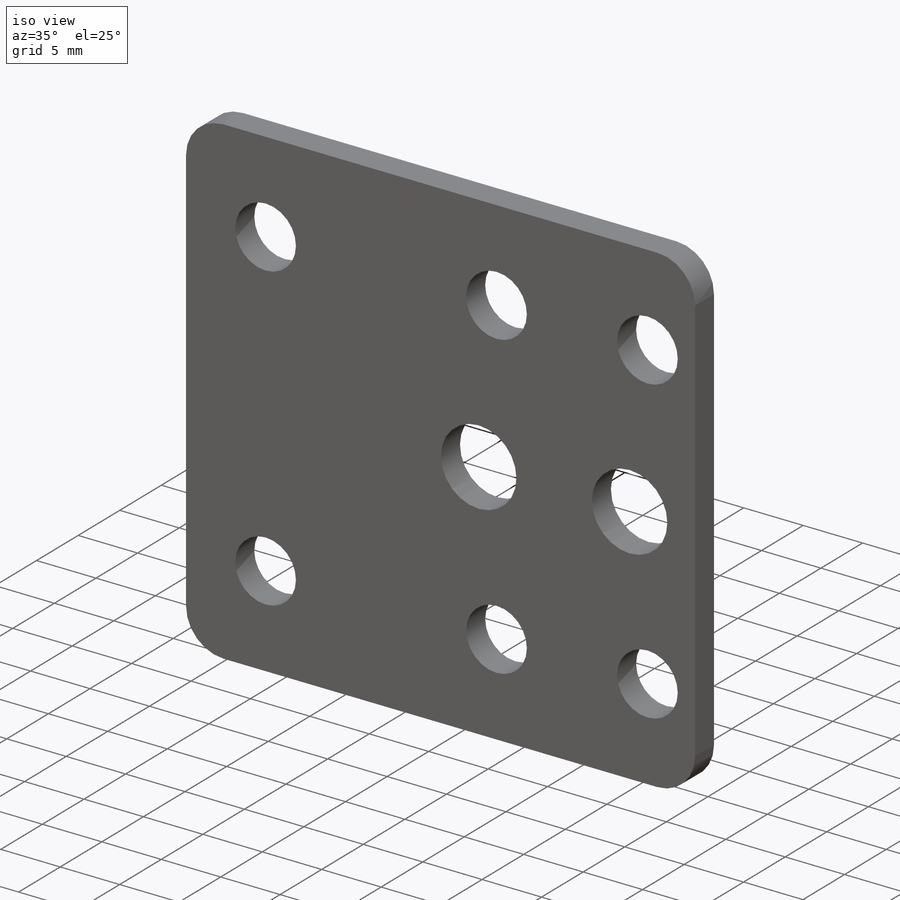
[diagram: iso view]
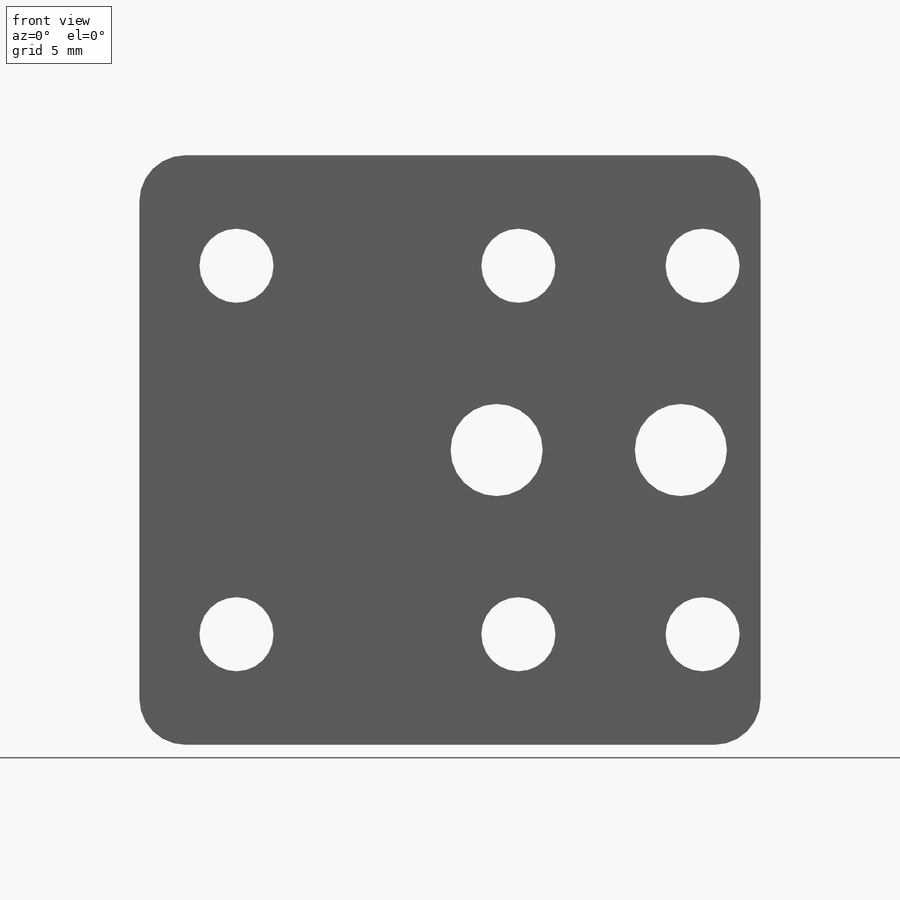
[diagram: front view]
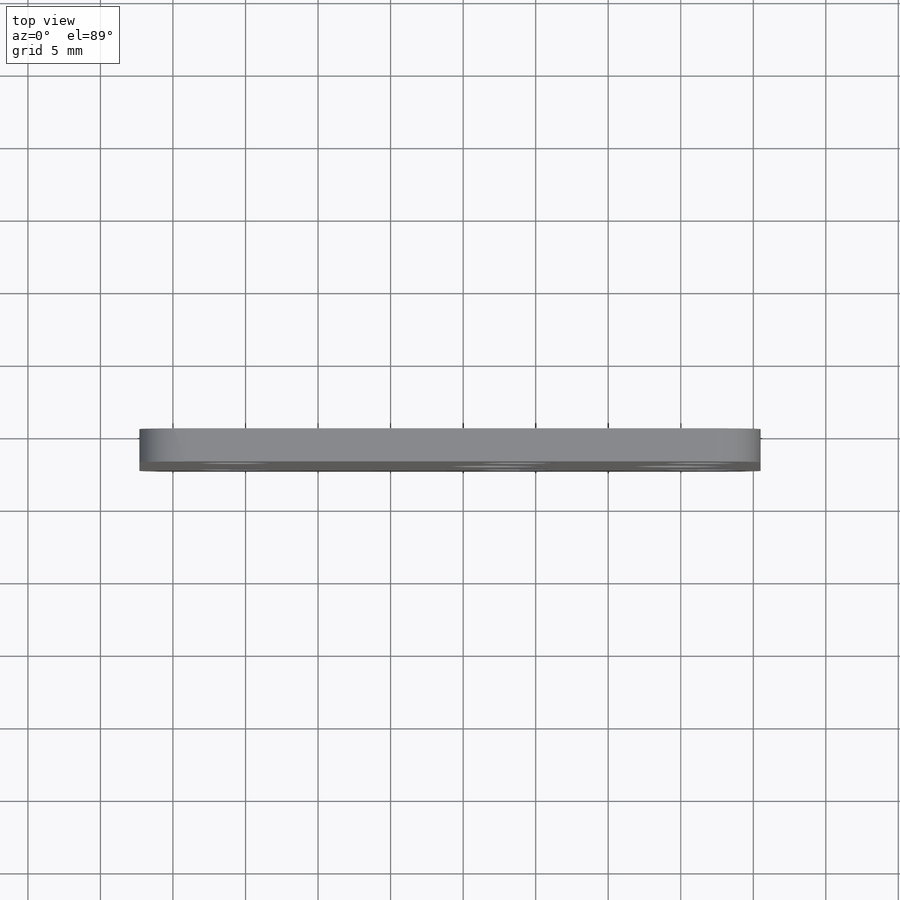
[diagram: top view]
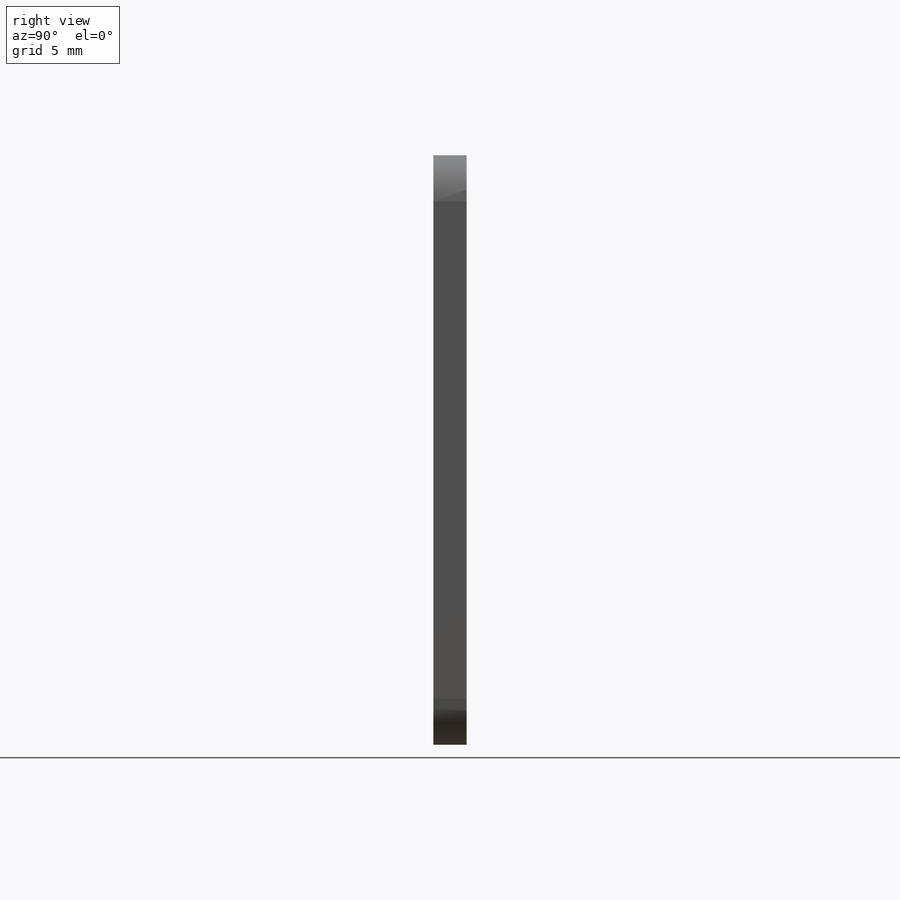
[diagram: right view]
SOLIDWORKS PART (.sldprt)
format: sldprt  version: not decoded by parser v0  size: 438,784 bytes
history: native  units: mm
features: sketch x17, sheet_metal_op x6, cut_extrude x4, fillet x4, material x1 + 5 further entries (+13 scaffold rows collapsed; 5 parser-record rows omitted)
feature tree (55):
  scaffold x13  (default folders/planes/origin — collapsed)
  material  "5052-H32"
  sketch  "Sketch1"  dims[c1.D1=40.64mm c1.D2=~73.733058mm c2.D1=40.64mm c2.D2=76.79mm c3.D1=40.64mm c3.D2=76.2mm c3.D3=~4.253222mm c4.D1=2.9972mm c4.D2=0.5 c4.D3=2.9718mm c4.D6=500.0mm]
  sheet_metal_op  "Base-Flange1"
  sketch  "Sketch6"  dims[D1=5.1054mm D2=6.35mm]
  cut_extrude  "Cut-Extrude1"  [1 undecoded]
  fillet  "Fillet1"  Radius=3.175mm
  sketch  "Sketch7"  dims[c1.D1=~42.090257mm c1.D2=~48.489977mm c2.D1=5.4991mm]
  cut_extrude  "Remove 3rd Stage"  Depth=2.54mm
  fillet  "Fillet2"  Radius=3.175mm
  sketch  "Sketch8"  dims[c1.D1=~1.810664mm c1.D2=~0.440966mm c2.D1=~64.780146mm c2.D2=~24.79958mm c3.D1=5.4991mm]
  cut_extrude  "Remove 2nd Stage"  [1 undecoded]
  fillet  "Fillet3"  Radius=3.175mm
  sketch  "Sketch9"  dims[c1.D1=~54.031029mm c1.D2=~36.234594mm c2.D1=5.4991mm]
  cut_extrude  "Cut-Extrude2"  [1 undecoded]
  fillet  "Fillet4"  Radius=3.175mm
  sketch  "Bend-Lines1"
  sketch  "Bounding-Box1"
  sheet_metal_op  "Sheet-Metal1"
  "Flat-Pattern1"
  sketch  "Bend-Lines2"
  sketch  "Bounding-Box2"
  parser-record x5  (decoder bookkeeping rows leaked as tree rows — omitted from the tree; the rows remain in map.json)
  sheet_metal_op  "Sheet-Metal2"
  "Flat-Pattern1"
  sketch  "Bend-Lines2"
  sketch  "Bounding-Box2"
  sheet_metal_op  "Sheet-Metal3"
  "Flat-Pattern1"
  sketch  "Bend-Lines2"
  sketch  "Bounding-Box2"
  sheet_metal_op  "Sheet-Metal4"
  "Flat-Pattern1"
  sketch  "Bend-Lines2"
  sketch  "Bounding-Box2"
  sheet_metal_op  "Sheet-Metal5"
  "Flat-Pattern1"
  sketch  "Bend-Lines2"
  sketch  "Bounding-Box2"
decode coverage: 10 of 31 modeling features carry decoded parameters; 5 rows unclassified (native names shown)
note: ~ marks probable driven/reference dimensions
note: 3 parameter values undecoded
summary: no parameter record found for 3 features
note: suppression state not decoded; provenance and decode notes live in map.json
